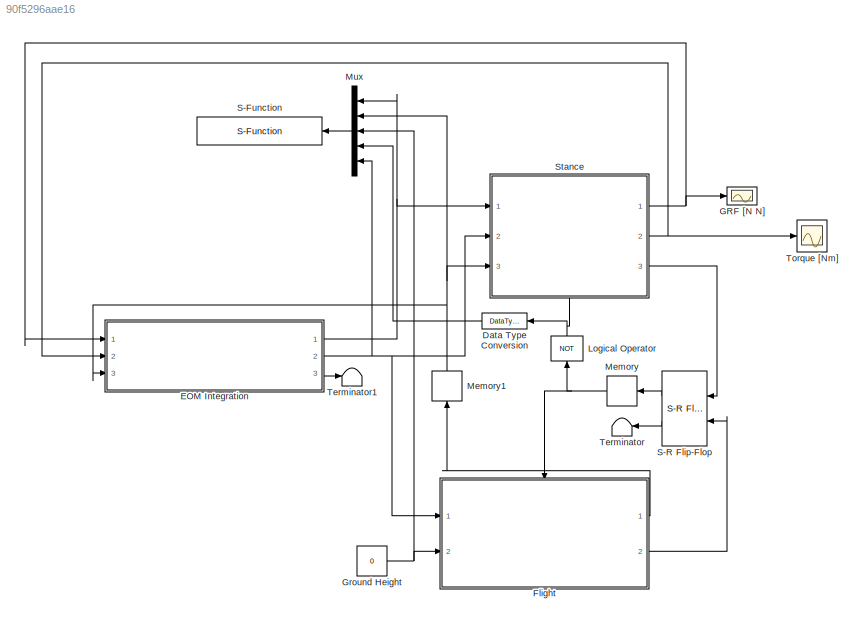
MODEL slx_90f5296aae16
KIND model
CONFIG AbsTol = 1e-6
CONFIG FixedStep = auto
CONFIG MaxStep = 1e-3
CONFIG MinStep = auto
CONFIG RelTol = 1e-4
CONFIG SampleTimeConstraint = Unconstrained
CONFIG Solver = ode45
CONFIG SolverMode = Auto
CONFIG SolverName = ode45
CONFIG StartTime = 0.0
CONFIG StopTime = simtime
BLOCK [DataTypeConversion] Data Type Conversion
  OutDataTypeStr = double
  RndMeth = Floor
  SaturateOnIntegerOverflow = off
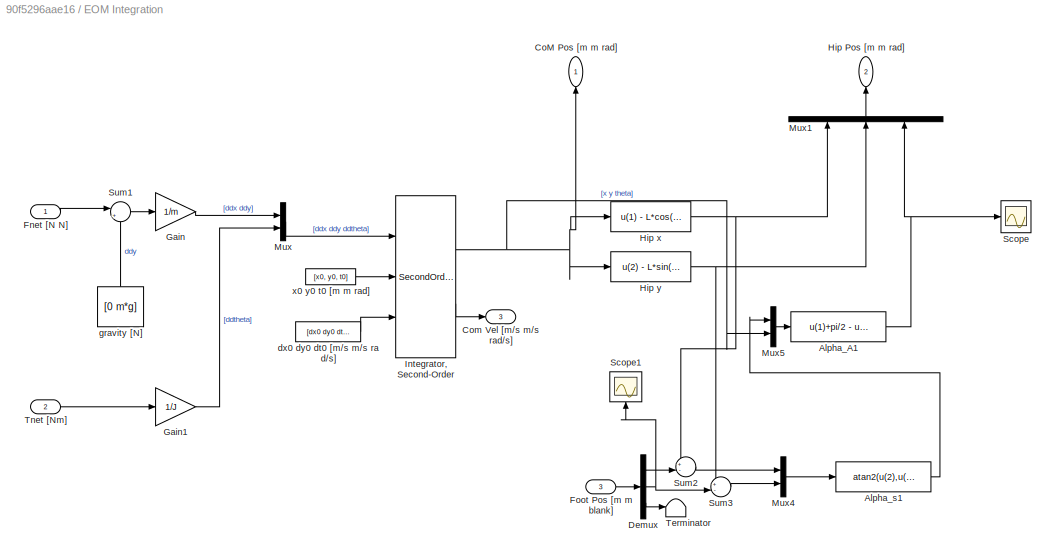
BLOCK [SubSystem] EOM Integration
  Ports = [3, 3]
  RequestExecContextInheritance = off
BLOCK [Fcn] EOM Integration/Alpha_A1
  Expr = u(1)+pi/2 - u(4)
BLOCK [Fcn] EOM Integration/Alpha_s1
  Expr = atan2(u(2),u(1)) - pi
BLOCK [Outport] EOM Integration/CoM Pos [m m rad]
  IconDisplay = Port number
BLOCK [Outport] EOM Integration/Com Vel [m//s m//s rad//s]
  IconDisplay = Port number
  Port = 3
BLOCK [Demux] EOM Integration/Demux
  DisplayOption = bar
  Outputs = 3
  Ports = [1, 3]
BLOCK [Inport] EOM Integration/Fnet [N N]
  IconDisplay = Port number
BLOCK [Inport] EOM Integration/Foot Pos [m m blank]
  IconDisplay = Port number
  Port = 3
BLOCK [Gain] EOM Integration/Gain
  Gain = 1/m
  OutDataTypeStr = Inherit: Inherit via internal rule
  ParamDataTypeStr = Inherit: Inherit via internal rule
  SaturateOnIntegerOverflow = off
BLOCK [Gain] EOM Integration/Gain1
  Gain = 1/J
  OutDataTypeStr = Inherit: Inherit via internal rule
  ParamDataTypeStr = Inherit: Inherit via internal rule
  SaturateOnIntegerOverflow = off
BLOCK [Outport] EOM Integration/Hip Pos [m m rad]
  IconDisplay = Port number
  Port = 2
BLOCK [Fcn] EOM Integration/Hip x
  Expr = u(1) - L*cos(u(3))
BLOCK [Fcn] EOM Integration/Hip y
  Expr = u(2) - L*sin(u(3))
BLOCK [SecondOrderIntegrator] EOM Integration/Integrator, Second-Order
  ICSourceDXDT = external
  ICSourceX = external
  Ports = [3, 2]
BLOCK [Mux] EOM Integration/Mux
  DisplayOption = bar
  Inputs = 2
  Ports = [2, 1]
BLOCK [Mux] EOM Integration/Mux1
  DisplayOption = bar
  Inputs = 3
  Ports = [3, 1]
BLOCK [Mux] EOM Integration/Mux4
  DisplayOption = bar
  Inputs = 2
  Ports = [2, 1]
BLOCK [Mux] EOM Integration/Mux5
  DisplayOption = bar
  Inputs = 2
  Ports = [2, 1]
BLOCK [Scope] EOM Integration/Scope
  Floating = off
  NumInputPorts = 1
  Ports = [1]
  SaveName = ScopeData2
  ZoomMode = yonly
BLOCK [Scope] EOM Integration/Scope1
  Floating = off
  NumInputPorts = 1
  Ports = [1]
  SaveName = ScopeData1
  ZoomMode = yonly
BLOCK [Sum] EOM Integration/Sum1
  IconShape = round
  InputSameDT = off
  Inputs = |+-
  OutDataTypeStr = Inherit: Inherit via internal rule
  Ports = [2, 1]
  SaturateOnIntegerOverflow = off
BLOCK [Sum] EOM Integration/Sum2
  IconShape = round
  InputSameDT = off
  Inputs = +-|
  OutDataTypeStr = Inherit: Inherit via internal rule
  Ports = [2, 1]
  SaturateOnIntegerOverflow = off
BLOCK [Sum] EOM Integration/Sum3
  IconShape = round
  InputSameDT = off
  Inputs = +-|
  OutDataTypeStr = Inherit: Inherit via internal rule
  Ports = [2, 1]
  SaturateOnIntegerOverflow = off
BLOCK [Terminator] EOM Integration/Terminator
BLOCK [Inport] EOM Integration/Tnet [Nm]
  IconDisplay = Port number
  Port = 2
BLOCK [Constant] EOM Integration/dx0 dy0 dt0 [m//s m//s ra d//s]
  Value = [dx0 dy0 dt0]
BLOCK [Constant] EOM Integration/gravity  [N]
  Value = [0 m*g]
BLOCK [Constant] EOM Integration/x0 y0 t0 [m m rad]
  Value = [x0, y0, t0]
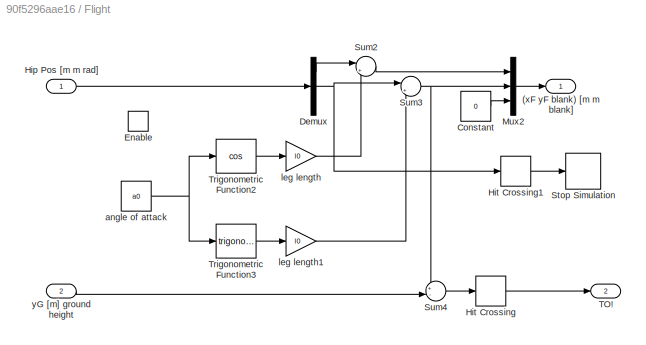
BLOCK [SubSystem] Flight
  Ports = [2, 2, 1]
  RequestExecContextInheritance = off
BLOCK [Outport] Flight/(xF yF blank) [m m blank]
  AttributesFormatString = %<OutputWhenDisabled>
  IconDisplay = Port number
  InitialOutput = [0 0 0]
BLOCK [Constant] Flight/Constant
  Value = 0
BLOCK [Demux] Flight/Demux
  DisplayOption = bar
  Outputs = 3
  Ports = [1, 3]
BLOCK [EnablePort] Flight/Enable
  Ports = []
  StatesWhenEnabling = reset
BLOCK [Inport] Flight/Hip Pos [m m rad]
  IconDisplay = Port number
BLOCK [HitCross] Flight/Hit Crossing
  HitCrossingDirection = falling
  Ports = [1, 1]
BLOCK [HitCross] Flight/Hit Crossing1
  HitCrossingDirection = falling
  Ports = [1, 1]
BLOCK [Mux] Flight/Mux2
  DisplayOption = bar
  Inputs = 3
  Ports = [3, 1]
BLOCK [Stop] Flight/Stop Simulation
BLOCK [Sum] Flight/Sum2
  IconShape = round
  InputSameDT = off
  Inputs = |++
  OutDataTypeStr = Inherit: Inherit via internal rule
  Ports = [2, 1]
  SaturateOnIntegerOverflow = off
BLOCK [Sum] Flight/Sum3
  IconShape = round
  InputSameDT = off
  Inputs = |+-
  OutDataTypeStr = Inherit: Inherit via internal rule
  Ports = [2, 1]
  SaturateOnIntegerOverflow = off
BLOCK [Sum] Flight/Sum4
  IconShape = round
  InputSameDT = off
  Inputs = +-|
  OutDataTypeStr = Inherit: Inherit via internal rule
  Ports = [2, 1]
  SaturateOnIntegerOverflow = off
BLOCK [Outport] Flight/TO!
  AttributesFormatString = %<OutputWhenDisabled>
  IconDisplay = Port number
  InitialOutput = 0
  OutputWhenDisabled = reset
  Port = 2
BLOCK [Trigonometry] Flight/Trigonometric Function2
  Operator = cos
  Ports = [1, 1]
BLOCK [Trigonometry] Flight/Trigonometric Function3
  Ports = [1, 1]
BLOCK [Constant] Flight/angle of attack
  Value = a0
BLOCK [Gain] Flight/leg length
  Gain = l0
  OutDataTypeStr = Inherit: Inherit via internal rule
  ParamDataTypeStr = Inherit: Inherit via internal rule
  SaturateOnIntegerOverflow = off
BLOCK [Gain] Flight/leg length1
  Gain = l0
  OutDataTypeStr = Inherit: Inherit via internal rule
  ParamDataTypeStr = Inherit: Inherit via internal rule
  SaturateOnIntegerOverflow = off
BLOCK [Inport] Flight/yG [m] ground height
  IconDisplay = Port number
  Port = 2
BLOCK [Scope] GRF [N N]
  DataFormat = StructureWithTime
  Floating = off
  NumInputPorts = 1
  Ports = [1]
  YMax = 10
  YMin = -10
  ZoomMode = yonly
BLOCK [Constant] Ground Height
  Value = 0
BLOCK [Logic] Logical Operator
  AllPortsSameDT = off
  Operator = NOT
  OutDataTypeStr = boolean
  Ports = [1, 1]
BLOCK [Memory] Memory
  X0 = 1
BLOCK [Memory] Memory1
  X0 = [0 0 0]
BLOCK [Mux] Mux
  DisplayOption = bar
  Inputs = 5
  Ports = [5, 1]
BLOCK [S-Function] S-Function
  FunctionName = AnimSMR2
  Parameters = 0.002
  Ports = [1]
BLOCK [Reference] S-R Flip-Flop  REF=simulink_extras/Flip Flops/S-R
Flip-Flop
  Ports = [2, 2]
  SourceBlock = simulink_extras/Flip Flops/S-R\nFlip-Flop
  SourceType = SRFlipFlop
  initial_condition = 1
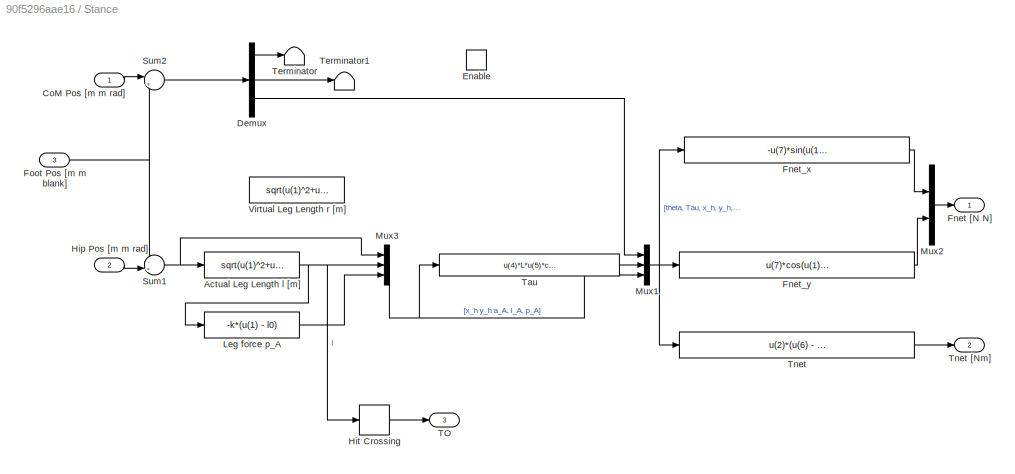
BLOCK [SubSystem] Stance
  Ports = [3, 3, 1]
  RequestExecContextInheritance = off
BLOCK [Fcn] Stance/Actual Leg Length l [m]
  Expr = sqrt(u(1)^2+u(2)^2)
BLOCK [Inport] Stance/CoM Pos [m m rad] 
  IconDisplay = Port number
BLOCK [Demux] Stance/Demux
  DisplayOption = bar
  Outputs = 3
  Ports = [1, 3]
BLOCK [EnablePort] Stance/Enable
  Ports = []
  StatesWhenEnabling = reset
BLOCK [Outport] Stance/Fnet [N N]
  IconDisplay = Port number
  InitialOutput = [0,0]
  OutputWhenDisabled = reset
BLOCK [Fcn] Stance/Fnet_x
  Expr = -u(7)*sin(u(1)+u(5)) + u(2)*cos(u(1)+u(5))/u(6)
BLOCK [Fcn] Stance/Fnet_y
  Expr = u(7)*cos(u(1)+u(5)) + u(2)*sin(u(1)+u(5))/u(6)
BLOCK [Inport] Stance/Foot Pos [m m blank]
  IconDisplay = Port number
  Port = 3
BLOCK [Inport] Stance/Hip Pos [m m rad]
  IconDisplay = Port number
  Port = 2
BLOCK [HitCross] Stance/Hit Crossing
  HitCrossingDirection = rising
  HitCrossingOffset = l0
  Ports = [1, 1]
BLOCK [Fcn] Stance/Leg force p_A
  Expr = -k*(u(1) - l0)
BLOCK [Mux] Stance/Mux1
  DisplayOption = bar
  Inputs = 3
  Ports = [3, 1]
BLOCK [Mux] Stance/Mux2
  DisplayOption = bar
  Inputs = 2
  Ports = [2, 1]
BLOCK [Mux] Stance/Mux3
  DisplayOption = bar
  Inputs = 3
  Ports = [3, 1]
BLOCK [Sum] Stance/Sum1
  IconShape = round
  InputSameDT = off
  Inputs = -+|
  OutDataTypeStr = Inherit: Inherit via internal rule
  Ports = [2, 1]
  SaturateOnIntegerOverflow = off
BLOCK [Sum] Stance/Sum2
  IconShape = round
  InputSameDT = off
  Inputs = |+-
  OutDataTypeStr = Inherit: Inherit via internal rule
  Ports = [2, 1]
  SaturateOnIntegerOverflow = off
BLOCK [Outport] Stance/TO
  IconDisplay = Port number
  InitialOutput = [0]
  OutputWhenDisabled = reset
  Port = 3
BLOCK [Fcn] Stance/Tau
  Expr = u(4)*L*u(5)*cos(u(3))/(u(4) - L*sin(u(3)))
BLOCK [Terminator] Stance/Terminator
BLOCK [Terminator] Stance/Terminator1
BLOCK [Fcn] Stance/Tnet
  Expr = u(2)*(u(6) - L*sin(u(5)))/u(6) - L*u(7)*cos(u(5))
BLOCK [Outport] Stance/Tnet [Nm]
  IconDisplay = Port number
  InitialOutput = [0]
  OutputWhenDisabled = reset
  Port = 2
BLOCK [Fcn] Stance/Virtual Leg Length r [m]
  Commented = on
  Expr = sqrt(u(1)^2+u(2)^2)
BLOCK [Terminator] Terminator
BLOCK [Terminator] Terminator1
BLOCK [Scope] Torque [Nm]
  DataFormat = StructureWithTime
  Floating = off
  NumInputPorts = 1
  Ports = [1]
  SaveName = ScopeData3
  YMax = 10
  YMin = -10
  ZoomMode = yonly
LINE Data Type Conversion:1 -> Mux:4
NET EOM Integration/Alpha_A1:1 -> EOM Integration/Mux1:3, EOM Integration/Scope:1
LINE EOM Integration/Alpha_s1:1 -> EOM Integration/Mux5:1
LINE EOM Integration/Demux:1 -> EOM Integration/Sum2:2
NET EOM Integration/Demux:2 -> EOM Integration/Scope1:1, EOM Integration/Sum3:2
LINE EOM Integration/Demux:3 -> EOM Integration/Terminator:1
LINE EOM Integration/Fnet [N N]:1 -> EOM Integration/Sum1:1
LINE EOM Integration/Foot Pos [m m blank]:1 -> EOM Integration/Demux:1
LINE EOM Integration/Gain1:1 -> EOM Integration/Mux:2
LINE EOM Integration/Gain:1 -> EOM Integration/Mux:1
NET EOM Integration/Hip x:1 -> EOM Integration/Mux1:1, EOM Integration/Sum2:1
NET EOM Integration/Hip y:1 -> EOM Integration/Mux1:2, EOM Integration/Sum3:1
NET EOM Integration/Integrator, Second-Order:1 -> EOM Integration/CoM Pos [m m rad]:1, EOM Integration/Hip x:1, EOM Integration/Hip y:1, EOM Integration/Mux5:2
LINE EOM Integration/Integrator, Second-Order:2 -> EOM Integration/Com Vel [m//s m//s rad//s]:1
LINE EOM Integration/Mux1:1 -> EOM Integration/Hip Pos [m m rad]:1
LINE EOM Integration/Mux4:1 -> EOM Integration/Alpha_s1:1
LINE EOM Integration/Mux5:1 -> EOM Integration/Alpha_A1:1
LINE EOM Integration/Mux:1 -> EOM Integration/Integrator, Second-Order:1
LINE EOM Integration/Sum1:1 -> EOM Integration/Gain:1
LINE EOM Integration/Sum2:1 -> EOM Integration/Mux4:1
LINE EOM Integration/Sum3:1 -> EOM Integration/Mux4:2
LINE EOM Integration/Tnet [Nm]:1 -> EOM Integration/Gain1:1
LINE EOM Integration/dx0 dy0 dt0 [m//s m//s ra d//s]:1 -> EOM Integration/Integrator, Second-Order:3
LINE EOM Integration/gravity  [N]:1 -> EOM Integration/Sum1:2
LINE EOM Integration/x0 y0 t0 [m m rad]:1 -> EOM Integration/Integrator, Second-Order:2
NET EOM Integration:1 -> Mux:1, Stance:1
NET EOM Integration:2 -> Flight:1, Mux:5, Stance:2
LINE EOM Integration:3 -> Terminator1:1
LINE Flight/Constant:1 -> Flight/Mux2:3
LINE Flight/Demux:1 -> Flight/Sum2:1
NET Flight/Demux:2 -> Flight/Hit Crossing1:1, Flight/Sum3:1
LINE Flight/Hip Pos [m m rad]:1 -> Flight/Demux:1
LINE Flight/Hit Crossing1:1 -> Flight/Stop Simulation:1
LINE Flight/Hit Crossing:1 -> Flight/TO!:1
LINE Flight/Mux2:1 -> Flight/(xF yF blank) [m m blank]:1
LINE Flight/Sum2:1 -> Flight/Mux2:1
NET Flight/Sum3:1 -> Flight/Mux2:2, Flight/Sum4:1
LINE Flight/Sum4:1 -> Flight/Hit Crossing:1
LINE Flight/Trigonometric Function2:1 -> Flight/leg length:1
LINE Flight/Trigonometric Function3:1 -> Flight/leg length1:1
NET Flight/angle of attack:1 -> Flight/Trigonometric Function2:1, Flight/Trigonometric Function3:1
LINE Flight/leg length1:1 -> Flight/Sum3:2
LINE Flight/leg length:1 -> Flight/Sum2:2
LINE Flight/yG [m] ground height:1 -> Flight/Sum4:2
LINE Flight:1 -> Memory1:1
LINE Flight:2 -> S-R Flip-Flop:2
NET Ground Height:1 -> Flight:2, Mux:3
NET Logical Operator:1 -> Data Type Conversion:1, Stance:enable
NET Memory1:1 -> EOM Integration:3, Mux:2, Stance:3
NET Memory:1 -> Flight:enable, Logical Operator:1
LINE Mux:1 -> S-Function:1
LINE S-R Flip-Flop:1 -> Memory:1
LINE S-R Flip-Flop:2 -> Terminator:1
NET Stance/Actual Leg Length l [m]:1 -> Stance/Hit Crossing:1, Stance/Leg force p_A:1, Stance/Mux3:2
LINE Stance/CoM Pos [m m rad] :1 -> Stance/Sum2:1
LINE Stance/Demux:1 -> Stance/Terminator:1
LINE Stance/Demux:2 -> Stance/Terminator1:1
LINE Stance/Demux:3 -> Stance/Mux1:1
LINE Stance/Fnet_x:1 -> Stance/Mux2:1
LINE Stance/Fnet_y:1 -> Stance/Mux2:2
NET Stance/Foot Pos [m m blank]:1 -> Stance/Sum1:1, Stance/Sum2:2
LINE Stance/Hip Pos [m m rad]:1 -> Stance/Sum1:2
LINE Stance/Hit Crossing:1 -> Stance/TO:1
LINE Stance/Leg force p_A:1 -> Stance/Mux3:3
NET Stance/Mux1:1 -> Stance/Fnet_x:1, Stance/Fnet_y:1, Stance/Tnet:1
LINE Stance/Mux2:1 -> Stance/Fnet [N N]:1
NET Stance/Mux3:1 -> Stance/Mux1:3, Stance/Tau:1
NET Stance/Sum1:1 -> Stance/Actual Leg Length l [m]:1, Stance/Mux3:1
LINE Stance/Sum2:1 -> Stance/Demux:1
LINE Stance/Tau:1 -> Stance/Mux1:2
LINE Stance/Tnet:1 -> Stance/Tnet [Nm]:1
NET Stance:1 -> EOM Integration:1, GRF [N N]:1
NET Stance:2 -> EOM Integration:2, Torque [Nm]:1
LINE Stance:3 -> S-R Flip-Flop:1
note: NET lines group one-source signal fan-out (src -> all destinations, sorted); 1:1 wires keep LINE
